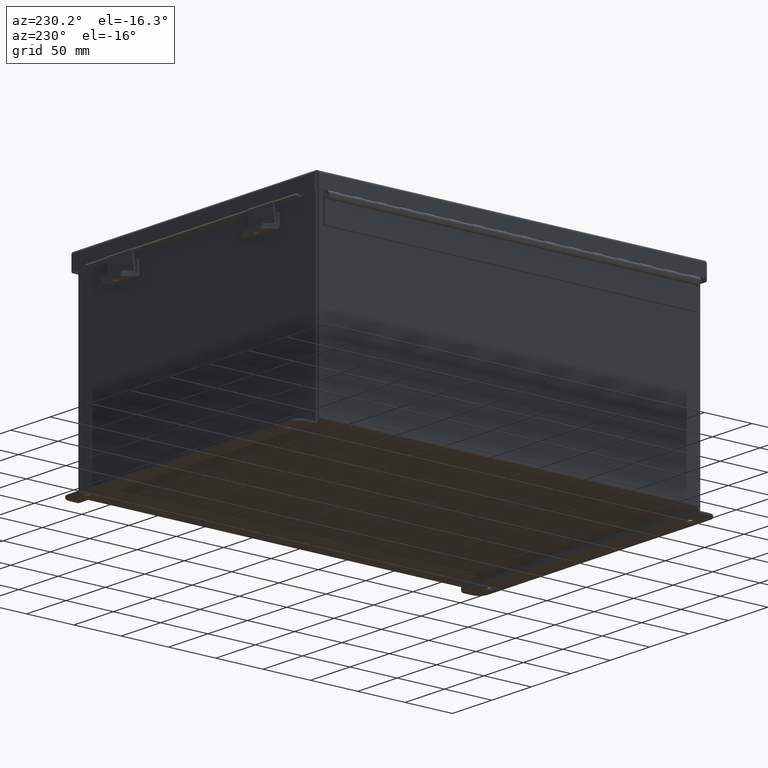
[diagram: clean part render]
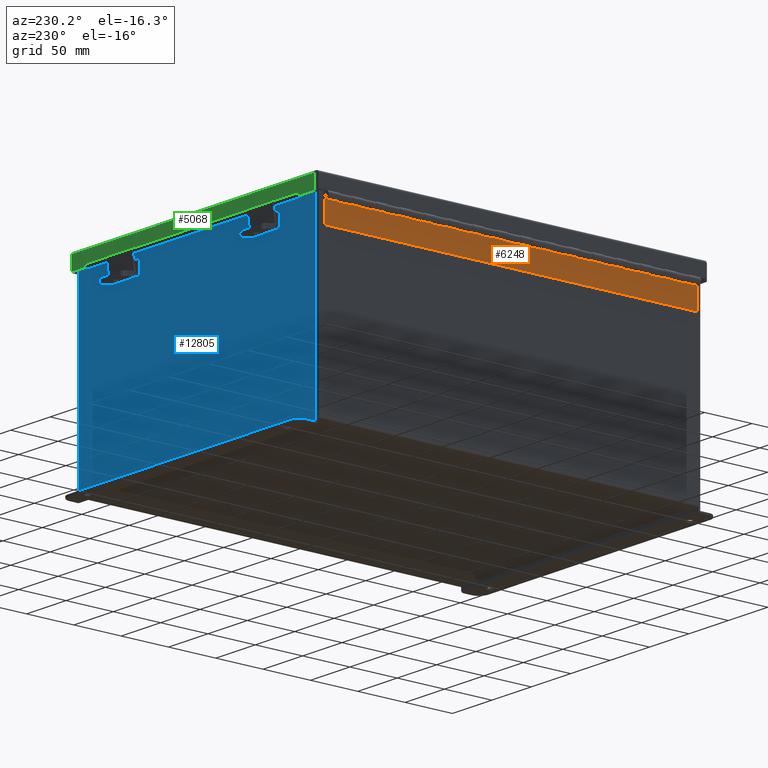
[diagram: same view with three faces highlighted in distinct colors, each labeled with its STEP entity id]
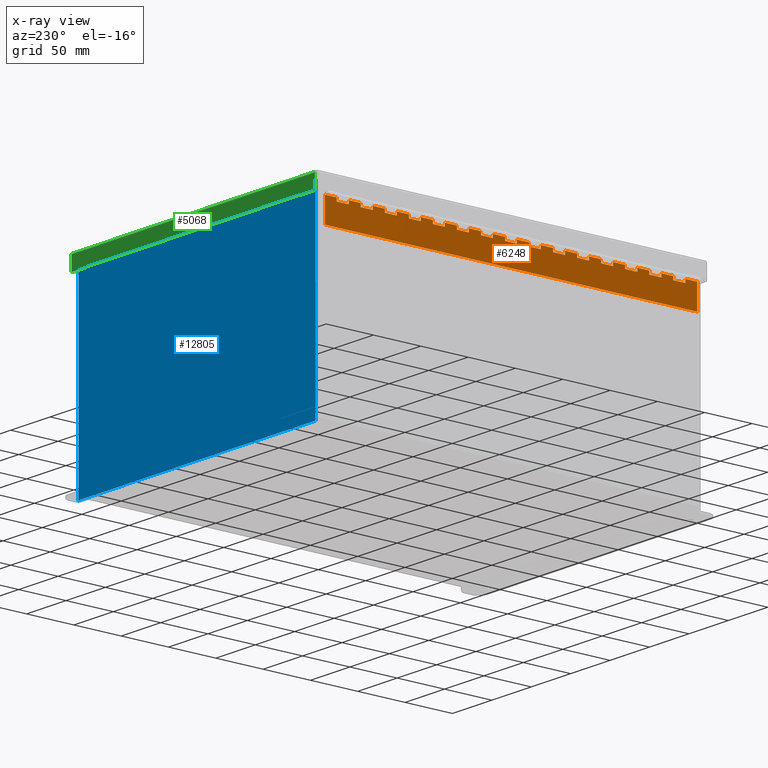
[diagram: x-ray of the same camera — body ghosted, the three highlighted faces saturated]
A machine part, auxiliary view with three faces highlighted in distinct colors.
The next image is the same camera in x-ray (body ghosted, the three faces saturated) — at least one of them is partly hidden behind the body in this view.
Their STEP definitions:

[orange] entity #6248 — the highlighted planar face has unit normal (1, -0, 0).
#3 = VECTOR ( 'NONE', #9007, 39.37007874015748100 ) ;
#46 = CARTESIAN_POINT ( 'NONE',  ( 0.1365000000000000100, 13.00000000000000000, -1.707404996040164500E-017 ) ) ;
#153 = EDGE_CURVE ( 'NONE', #8530, #1476, #5416, .T. ) ;
#333 = DIRECTION ( 'NONE',  ( -1.000000000000000000, 0.0000000000000000000, 0.0000000000000000000 ) ) ;
#391 = CARTESIAN_POINT ( 'NONE',  ( 0.1365000000000000100, 0.0000000000000000000, -1.707404996040164500E-017 ) ) ;
#461 = CARTESIAN_POINT ( 'NONE',  ( 0.2730000000000000200, 0.0000000000000000000, 0.0000000000000000000 ) ) ;
#488 = LINE ( 'NONE', #7383, #5603 ) ;
#493 = VERTEX_POINT ( 'NONE', #2333 ) ;
#516 = DIRECTION ( 'NONE',  ( 0.0000000000000000000, 1.000000000000000000, 0.0000000000000000000 ) ) ;
#526 = EDGE_CURVE ( 'NONE', #12736, #3023, #19747, .T. ) ;
#618 = CARTESIAN_POINT ( 'NONE',  ( 0.1365000000000000100, 0.0000000000000000000, -1.707404996040164500E-017 ) ) ;
#699 = EDGE_CURVE ( 'NONE', #14572, #18294, #5392, .T. ) ;
#700 = CARTESIAN_POINT ( 'NONE',  ( 0.1365000000000000100, 6.500000000000003600, -1.707404996040164500E-017 ) ) ;
#713 = VERTEX_POINT ( 'NONE', #3446 ) ;
#722 = ORIENTED_EDGE ( 'NONE', *, *, #526, .T. ) ;
#771 = ORIENTED_EDGE ( 'NONE', *, *, #16030, .F. ) ;
#893 = CARTESIAN_POINT ( 'NONE',  ( 0.1365000000000000100, 5.000000000000000000, -1.707404996040164500E-017 ) ) ;
#995 = CARTESIAN_POINT ( 'NONE',  ( 0.2730000000000000200, 15.00000000000000000, 0.0000000000000000000 ) ) ;
#1054 = DIRECTION ( 'NONE',  ( -1.000000000000000000, -8.005415366049128100E-015, 0.0000000000000000000 ) ) ;
#1101 = EDGE_CURVE ( 'NONE', #2917, #19123, #14157, .T. ) ;
#1227 = DIRECTION ( 'NONE',  ( -1.000000000000000000, -8.005415366049128100E-015, 0.0000000000000000000 ) ) ;
#1230 = CARTESIAN_POINT ( 'NONE',  ( 0.1365000000000000100, 11.00000000000000000, -1.707404996040164500E-017 ) ) ;
#1265 = VECTOR ( 'NONE', #13821, 39.37007874015748100 ) ;
#1304 = VECTOR ( 'NONE', #1227, 39.37007874015748100 ) ;
#1352 = LINE ( 'NONE', #8424, #9545 ) ;
#1434 = CARTESIAN_POINT ( 'NONE',  ( 0.2730000000000000200, 11.00000000000000000, 0.0000000000000000000 ) ) ;
#1463 = CARTESIAN_POINT ( 'NONE',  ( 0.0000000000000000000, 15.00000000000000000, 0.0000000000000000000 ) ) ;
#1476 = VERTEX_POINT ( 'NONE', #10906 ) ;
#1535 = ORIENTED_EDGE ( 'NONE', *, *, #7139, .F. ) ;
#1542 = VERTEX_POINT ( 'NONE', #46 ) ;
#1564 = VECTOR ( 'NONE', #6914, 39.37007874015748100 ) ;
#1583 = CARTESIAN_POINT ( 'NONE',  ( 0.1365000000000000100, 7.500000000000003600, -1.707404996040164500E-017 ) ) ;
#1594 = ORIENTED_EDGE ( 'NONE', *, *, #8466, .F. ) ;
#1603 = VERTEX_POINT ( 'NONE', #3360 ) ;
#1628 = VERTEX_POINT ( 'NONE', #12280 ) ;
#1717 = EDGE_CURVE ( 'NONE', #6174, #11030, #12152, .T. ) ;
#1738 = LINE ( 'NONE', #11251, #13144 ) ;
#1770 = VECTOR ( 'NONE', #5754, 39.37007874015748100 ) ;
#1844 = VECTOR ( 'NONE', #14660, 39.37007874015748100 ) ;
#1866 = DIRECTION ( 'NONE',  ( 0.0000000000000000000, 1.000000000000000000, 0.0000000000000000000 ) ) ;
#1998 = LINE ( 'NONE', #13473, #9709 ) ;
#2001 = DIRECTION ( 'NONE',  ( -1.000000000000000000, -8.005415366049128100E-015, 0.0000000000000000000 ) ) ;
#2015 = CARTESIAN_POINT ( 'NONE',  ( 0.1365000000000000100, 14.00000000000000200, -1.707404996040164500E-017 ) ) ;
#2018 = VECTOR ( 'NONE', #333, 39.37007874015748100 ) ;
#2038 = VECTOR ( 'NONE', #13010, 39.37007874015748100 ) ;
#2075 = CARTESIAN_POINT ( 'NONE',  ( 0.1365000000000000100, 3.500000000000003600, -1.707404996040164500E-017 ) ) ;
#2170 = CARTESIAN_POINT ( 'NONE',  ( 0.2730000000000000200, -14.00000000000000000, 0.0000000000000000000 ) ) ;
#2269 = CARTESIAN_POINT ( 'NONE',  ( -1.160785228077123600E-013, 4.500000000000000900, 0.0000000000000000000 ) ) ;
#2282 = VERTEX_POINT ( 'NONE', #12005 ) ;
#2290 = VERTEX_POINT ( 'NONE', #16976 ) ;
#2318 = ORIENTED_EDGE ( 'NONE', *, *, #3606, .T. ) ;
#2333 = CARTESIAN_POINT ( 'NONE',  ( 0.1365000000000000100, 1.500000000000003100, -1.707404996040164500E-017 ) ) ;
#2361 = LINE ( 'NONE', #14863, #10089 ) ;
#2403 = ORIENTED_EDGE ( 'NONE', *, *, #9095, .F. ) ;
#2446 = DIRECTION ( 'NONE',  ( 0.0000000000000000000, 1.000000000000000000, 0.0000000000000000000 ) ) ;
#2483 = VECTOR ( 'NONE', #3476, 39.37007874015748100 ) ;
#2487 = DIRECTION ( 'NONE',  ( 0.0000000000000000000, 1.000000000000000000, 0.0000000000000000000 ) ) ;
#2574 = VECTOR ( 'NONE', #5277, 39.37007874015748100 ) ;
#2594 = VERTEX_POINT ( 'NONE', #700 ) ;
#2639 = VECTOR ( 'NONE', #9707, 39.37007874015748100 ) ;
#2726 = VERTEX_POINT ( 'NONE', #11548 ) ;
#2779 = EDGE_CURVE ( 'NONE', #1603, #12071, #7074, .T. ) ;
#2804 = VECTOR ( 'NONE', #17654, 39.37007874015748100 ) ;
#2853 = ORIENTED_EDGE ( 'NONE', *, *, #9644, .F. ) ;
#2917 = VERTEX_POINT ( 'NONE', #16518 ) ;
#2926 = CARTESIAN_POINT ( 'NONE',  ( 0.2730000000000000200, 4.000000000000000900, 0.0000000000000000000 ) ) ;
#2977 = ORIENTED_EDGE ( 'NONE', *, *, #11495, .F. ) ;
#3023 = VERTEX_POINT ( 'NONE', #3148 ) ;
#3078 = EDGE_CURVE ( 'NONE', #6644, #18162, #9459, .T. ) ;
#3095 = VERTEX_POINT ( 'NONE', #10650 ) ;
#3116 = VECTOR ( 'NONE', #14260, 39.37007874015748100 ) ;
#3148 = CARTESIAN_POINT ( 'NONE',  ( 0.1365000000000000100, 10.50000000000000200, -1.707404996040164500E-017 ) ) ;
#3166 = LINE ( 'NONE', #5342, #10910 ) ;
#3170 = DIRECTION ( 'NONE',  ( -1.000000000000000000, 0.0000000000000000000, 0.0000000000000000000 ) ) ;
#3210 = LINE ( 'NONE', #10047, #7316 ) ;
#3270 = EDGE_CURVE ( 'NONE', #713, #6211, #6560, .T. ) ;
#3277 = VERTEX_POINT ( 'NONE', #8619 ) ;
#3333 = VERTEX_POINT ( 'NONE', #1230 ) ;
#3341 = EDGE_CURVE ( 'NONE', #18162, #7173, #9705, .T. ) ;
#3360 = CARTESIAN_POINT ( 'NONE',  ( 1.136500000000000100, 0.0000000000000000000, 0.0000000000000000000 ) ) ;
#3446 = CARTESIAN_POINT ( 'NONE',  ( 0.2730000000000000200, 14.00000000000000200, 0.0000000000000000000 ) ) ;
#3474 = VECTOR ( 'NONE', #12759, 39.37007874015748100 ) ;
#3476 = DIRECTION ( 'NONE',  ( -1.000000000000000000, 0.0000000000000000000, 0.0000000000000000000 ) ) ;
#3484 = DIRECTION ( 'NONE',  ( 0.0000000000000000000, 1.000000000000000000, 0.0000000000000000000 ) ) ;
#3538 = EDGE_CURVE ( 'NONE', #14258, #14279, #7282, .T. ) ;
#3560 = CARTESIAN_POINT ( 'NONE',  ( -1.160785228077123600E-013, 13.50000000000000200, 0.0000000000000000000 ) ) ;
#3582 = CARTESIAN_POINT ( 'NONE',  ( 0.0000000000000000000, 13.00000000000000000, 0.0000000000000000000 ) ) ;
#3606 = EDGE_CURVE ( 'NONE', #11453, #2282, #1738, .T. ) ;
#3686 = DIRECTION ( 'NONE',  ( -1.000000000000000000, -8.005415366049128100E-015, 0.0000000000000000000 ) ) ;
#3710 = LINE ( 'NONE', #19711, #18772 ) ;
#3785 = ORIENTED_EDGE ( 'NONE', *, *, #14071, .F. ) ;
#3868 = CARTESIAN_POINT ( 'NONE',  ( -1.160785228077123600E-013, 12.50000000000000000, 0.0000000000000000000 ) ) ;
#3886 = LINE ( 'NONE', #11362, #19465 ) ;
#3907 = LINE ( 'NONE', #11376, #12153 ) ;
#3959 = EDGE_CURVE ( 'NONE', #12008, #8530, #3166, .T. ) ;
#3974 = ORIENTED_EDGE ( 'NONE', *, *, #18471, .T. ) ;
#3978 = VECTOR ( 'NONE', #10866, 39.37007874015748100 ) ;
#4022 = ORIENTED_EDGE ( 'NONE', *, *, #18611, .T. ) ;
#4031 = EDGE_CURVE ( 'NONE', #3277, #1628, #17227, .T. ) ;
#4032 = ORIENTED_EDGE ( 'NONE', *, *, #7950, .F. ) ;
#4129 = DIRECTION ( 'NONE',  ( 0.0000000000000000000, 1.000000000000000000, 0.0000000000000000000 ) ) ;
#4161 = VECTOR ( 'NONE', #8328, 39.37007874015748100 ) ;
#4163 = CARTESIAN_POINT ( 'NONE',  ( 0.1365000000000000100, 4.000000000000000900, -1.707404996040164500E-017 ) ) ;
#4247 = ORIENTED_EDGE ( 'NONE', *, *, #6741, .F. ) ;
#4304 = CARTESIAN_POINT ( 'NONE',  ( 0.2730000000000000200, 7.000000000000000900, 0.0000000000000000000 ) ) ;
#4315 = CARTESIAN_POINT ( 'NONE',  ( 0.2730000000000000200, 13.00000000000000000, 0.0000000000000000000 ) ) ;
#4327 = CARTESIAN_POINT ( 'NONE',  ( 0.1365000000000000100, 0.0000000000000000000, -1.707404996040164500E-017 ) ) ;
#4595 = CARTESIAN_POINT ( 'NONE',  ( 0.1365000000000000100, 13.50000000000000400, -1.707404996040164500E-017 ) ) ;
#4614 = CARTESIAN_POINT ( 'NONE',  ( 0.1365000000000000100, 12.00000000000000200, -1.707404996040164500E-017 ) ) ;
#4632 = CARTESIAN_POINT ( 'NONE',  ( 0.0000000000000000000, 12.00000000000000200, 0.0000000000000000000 ) ) ;
#4652 = ORIENTED_EDGE ( 'NONE', *, *, #12603, .T. ) ;
#4725 = DIRECTION ( 'NONE',  ( 0.0000000000000000000, 1.000000000000000000, 0.0000000000000000000 ) ) ;
#4741 = CARTESIAN_POINT ( 'NONE',  ( 0.2730000000000000200, 13.50000000000000400, 0.0000000000000000000 ) ) ;
#4765 = ORIENTED_EDGE ( 'NONE', *, *, #3341, .F. ) ;
#4788 = CARTESIAN_POINT ( 'NONE',  ( 0.2730000000000000200, -1.000000000000000000, 0.0000000000000000000 ) ) ;
#4827 = ORIENTED_EDGE ( 'NONE', *, *, #18081, .T. ) ;
#4926 = EDGE_CURVE ( 'NONE', #18856, #713, #11358, .T. ) ;
#4949 = CARTESIAN_POINT ( 'NONE',  ( 0.0000000000000000000, 6.000000000000000900, 0.0000000000000000000 ) ) ;
#5022 = CARTESIAN_POINT ( 'NONE',  ( 0.2730000000000000200, -7.000000000000000000, 0.0000000000000000000 ) ) ;
#5131 = VECTOR ( 'NONE', #14427, 39.37007874015748100 ) ;
#5266 = VECTOR ( 'NONE', #19802, 39.37007874015748100 ) ;
#5277 = DIRECTION ( 'NONE',  ( 0.0000000000000000000, 1.000000000000000000, 0.0000000000000000000 ) ) ;
#5316 = CARTESIAN_POINT ( 'NONE',  ( 0.0000000000000000000, 0.0000000000000000000, 0.0000000000000000000 ) ) ;
#5342 = CARTESIAN_POINT ( 'NONE',  ( 0.2730000000000000200, -13.00000000000000000, 0.0000000000000000000 ) ) ;
#5392 = LINE ( 'NONE', #12124, #1304 ) ;
#5416 = LINE ( 'NONE', #14560, #12717 ) ;
#5417 = ORIENTED_EDGE ( 'NONE', *, *, #3538, .F. ) ;
#5437 = VERTEX_POINT ( 'NONE', #9591 ) ;
#5445 = EDGE_CURVE ( 'NONE', #3333, #1628, #7704, .T. ) ;
#5466 = EDGE_LOOP ( 'NONE', ( #5975, #14944, #12234, #8355, #10683, #17683, #5417, #17145, #17313, #18389, #13273, #12168, #10935, #2403, #3785, #4247, #4022, #1535, #8766, #19732, #17760, #7649, #2977, #19866, #722, #771, #9817, #11134, #16356, #15605, #11776, #6002, #18760, #4765, #6687, #11378, #12994, #14837, #17361, #19886, #4652, #5518, #11643, #10918, #2318, #19448, #8149, #18537, #15684, #18197, #9492, #6964, #3974, #4032, #1594, #11463, #12999, #12557, #12278, #16909, #4827, #12478, #8607, #2853 ) ) ;
#5469 = CARTESIAN_POINT ( 'NONE',  ( 0.2730000000000000200, 6.500000000000003600, 0.0000000000000000000 ) ) ;
#5482 = EDGE_CURVE ( 'NONE', #15211, #8581, #19147, .T. ) ;
#5518 = ORIENTED_EDGE ( 'NONE', *, *, #11937, .F. ) ;
#5588 = EDGE_CURVE ( 'NONE', #14279, #6457, #14268, .T. ) ;
#5597 = VECTOR ( 'NONE', #1866, 39.37007874015748100 ) ;
#5603 = VECTOR ( 'NONE', #19830, 39.37007874015748100 ) ;
#5702 = EDGE_CURVE ( 'NONE', #16415, #5768, #7666, .T. ) ;
#5754 = DIRECTION ( 'NONE',  ( 0.0000000000000000000, 1.000000000000000000, 0.0000000000000000000 ) ) ;
#5768 = VERTEX_POINT ( 'NONE', #2926 ) ;
#5957 = CARTESIAN_POINT ( 'NONE',  ( 0.1365000000000000100, 12.50000000000000400, -1.707404996040164500E-017 ) ) ;
#5960 = CARTESIAN_POINT ( 'NONE',  ( 0.1365000000000000100, 10.00000000000000000, -1.707404996040164500E-017 ) ) ;
#5975 = ORIENTED_EDGE ( 'NONE', *, *, #5482, .T. ) ;
#5981 = CARTESIAN_POINT ( 'NONE',  ( 0.1365000000000000100, 0.0000000000000000000, -1.707404996040164500E-017 ) ) ;
#6002 = ORIENTED_EDGE ( 'NONE', *, *, #17617, .F. ) ;
#6053 = EDGE_CURVE ( 'NONE', #7628, #13003, #2361, .T. ) ;
#6119 = DIRECTION ( 'NONE',  ( -1.000000000000000000, -8.005415366049128100E-015, 0.0000000000000000000 ) ) ;
#6121 = LINE ( 'NONE', #4949, #2018 ) ;
#6174 = VERTEX_POINT ( 'NONE', #18566 ) ;
#6211 = VERTEX_POINT ( 'NONE', #2015 ) ;
#6248 = ADVANCED_FACE ( 'NONE', ( #19095 ), #15713, .F. ) ;
#6256 = CARTESIAN_POINT ( 'NONE',  ( 0.2730000000000000200, 2.500000000000004400, 0.0000000000000000000 ) ) ;
#6316 = VECTOR ( 'NONE', #13557, 39.37007874015748100 ) ;
#6343 = DIRECTION ( 'NONE',  ( -1.000000000000000000, -8.005415366049128100E-015, 0.0000000000000000000 ) ) ;
#6357 = EDGE_CURVE ( 'NONE', #6211, #17036, #17126, .T. ) ;
#6448 = CARTESIAN_POINT ( 'NONE',  ( 0.1365000000000000100, 0.0000000000000000000, -1.707404996040164500E-017 ) ) ;
#6457 = VERTEX_POINT ( 'NONE', #17433 ) ;
#6524 = EDGE_CURVE ( 'NONE', #19123, #13762, #14234, .T. ) ;
#6531 = CARTESIAN_POINT ( 'NONE',  ( 0.2730000000000000200, 10.50000000000000200, 0.0000000000000000000 ) ) ;
#6538 = CARTESIAN_POINT ( 'NONE',  ( -1.160785228077123600E-013, 0.5000000000000017800, 0.0000000000000000000 ) ) ;
#6560 = LINE ( 'NONE', #7669, #2483 ) ;
#6568 = CARTESIAN_POINT ( 'NONE',  ( -1.160785228077123600E-013, 3.500000000000001300, 0.0000000000000000000 ) ) ;
#6581 = VECTOR ( 'NONE', #8561, 39.37007874015748100 ) ;
#6644 = VERTEX_POINT ( 'NONE', #15951 ) ;
#6687 = ORIENTED_EDGE ( 'NONE', *, *, #3078, .F. ) ;
#6741 = EDGE_CURVE ( 'NONE', #15471, #19284, #19076, .T. ) ;
#6775 = CARTESIAN_POINT ( 'NONE',  ( 0.1365000000000000100, 0.0000000000000000000, -1.707404996040164500E-017 ) ) ;
#6850 = VECTOR ( 'NONE', #7985, 39.37007874015748100 ) ;
#6880 = LINE ( 'NONE', #14026, #18801 ) ;
#6881 = CARTESIAN_POINT ( 'NONE',  ( -1.160785228077123600E-013, 10.50000000000000200, 0.0000000000000000000 ) ) ;
#6914 = DIRECTION ( 'NONE',  ( -1.000000000000000000, -8.005415366049128100E-015, 0.0000000000000000000 ) ) ;
#6934 = CARTESIAN_POINT ( 'NONE',  ( 0.2730000000000000200, -4.000000000000000000, 0.0000000000000000000 ) ) ;
#6964 = ORIENTED_EDGE ( 'NONE', *, *, #5702, .F. ) ;
#6967 = EDGE_CURVE ( 'NONE', #13809, #11030, #11993, .T. ) ;
#7024 = CARTESIAN_POINT ( 'NONE',  ( -1.160785228077123600E-013, 9.500000000000000000, 0.0000000000000000000 ) ) ;
#7074 = LINE ( 'NONE', #14575, #6581 ) ;
#7139 = EDGE_CURVE ( 'NONE', #14519, #7487, #20019, .T. ) ;
#7173 = VERTEX_POINT ( 'NONE', #9555 ) ;
#7211 = CARTESIAN_POINT ( 'NONE',  ( 0.1365000000000000100, 15.00000000000000000, -1.707404996040164500E-017 ) ) ;
#7212 = LINE ( 'NONE', #12809, #2639 ) ;
#7233 = LINE ( 'NONE', #5981, #14561 ) ;
#7248 = VECTOR ( 'NONE', #16247, 39.37007874015748100 ) ;
#7267 = CARTESIAN_POINT ( 'NONE',  ( 0.2730000000000000200, 12.00000000000000200, 0.0000000000000000000 ) ) ;
#7282 = LINE ( 'NONE', #1463, #6316 ) ;
#7316 = VECTOR ( 'NONE', #17793, 39.37007874015748100 ) ;
#7383 = CARTESIAN_POINT ( 'NONE',  ( 0.1365000000000000100, 0.0000000000000000000, -1.707404996040164500E-017 ) ) ;
#7391 = CARTESIAN_POINT ( 'NONE',  ( 0.1365000000000000100, 14.50000000000000400, -1.707404996040164500E-017 ) ) ;
#7466 = EDGE_CURVE ( 'NONE', #17277, #9261, #18794, .T. ) ;
#7487 = VERTEX_POINT ( 'NONE', #5957 ) ;
#7516 = VECTOR ( 'NONE', #13023, 39.37007874015748100 ) ;
#7593 = LINE ( 'NONE', #2269, #10748 ) ;
#7628 = VERTEX_POINT ( 'NONE', #19006 ) ;
#7649 = ORIENTED_EDGE ( 'NONE', *, *, #5445, .F. ) ;
#7666 = LINE ( 'NONE', #13959, #11811 ) ;
#7669 = CARTESIAN_POINT ( 'NONE',  ( 0.0000000000000000000, 14.00000000000000200, 0.0000000000000000000 ) ) ;
#7704 = LINE ( 'NONE', #12949, #3116 ) ;
#7760 = EDGE_CURVE ( 'NONE', #5768, #9883, #14428, .T. ) ;
#7813 = VECTOR ( 'NONE', #9651, 39.37007874015748100 ) ;
#7864 = CARTESIAN_POINT ( 'NONE',  ( 0.0000000000000000000, 9.000000000000001800, 0.0000000000000000000 ) ) ;
#7877 = EDGE_CURVE ( 'NONE', #15425, #14536, #16090, .T. ) ;
#7903 = DIRECTION ( 'NONE',  ( -1.000000000000000000, -8.005415366049128100E-015, 0.0000000000000000000 ) ) ;
#7909 = CARTESIAN_POINT ( 'NONE',  ( 0.2730000000000000200, 5.000000000000000000, 0.0000000000000000000 ) ) ;
#7950 = EDGE_CURVE ( 'NONE', #16865, #16725, #19272, .T. ) ;
#7982 = EDGE_CURVE ( 'NONE', #6174, #6644, #18774, .T. ) ;
#7985 = DIRECTION ( 'NONE',  ( 0.0000000000000000000, 1.000000000000000000, 0.0000000000000000000 ) ) ;
#8149 = ORIENTED_EDGE ( 'NONE', *, *, #7466, .F. ) ;
#8249 = LINE ( 'NONE', #4327, #3 ) ;
#8328 = DIRECTION ( 'NONE',  ( 0.0000000000000000000, 1.000000000000000000, 0.0000000000000000000 ) ) ;
#8355 = ORIENTED_EDGE ( 'NONE', *, *, #2779, .T. ) ;
#8358 = DIRECTION ( 'NONE',  ( 0.0000000000000000000, 1.000000000000000000, 0.0000000000000000000 ) ) ;
#8424 = CARTESIAN_POINT ( 'NONE',  ( 0.1365000000000000100, 0.0000000000000000000, -1.707404996040164500E-017 ) ) ;
#8466 = EDGE_CURVE ( 'NONE', #12567, #16865, #19534, .T. ) ;
#8530 = VERTEX_POINT ( 'NONE', #12470 ) ;
#8561 = DIRECTION ( 'NONE',  ( -8.812412882787946000E-018, 1.000000000000000000, 0.0000000000000000000 ) ) ;
#8579 = LINE ( 'NONE', #461, #15869 ) ;
#8581 = VERTEX_POINT ( 'NONE', #17291 ) ;
#8607 = ORIENTED_EDGE ( 'NONE', *, *, #6053, .F. ) ;
#8619 = CARTESIAN_POINT ( 'NONE',  ( 0.2730000000000000200, 11.50000000000000400, 0.0000000000000000000 ) ) ;
#8766 = ORIENTED_EDGE ( 'NONE', *, *, #11686, .F. ) ;
#8864 = VECTOR ( 'NONE', #8358, 39.37007874015748100 ) ;
#8896 = LINE ( 'NONE', #391, #16681 ) ;
#8900 = VERTEX_POINT ( 'NONE', #4304 ) ;
#9007 = DIRECTION ( 'NONE',  ( 0.0000000000000000000, 1.000000000000000000, 0.0000000000000000000 ) ) ;
#9050 = CARTESIAN_POINT ( 'NONE',  ( 0.1365000000000000100, 6.000000000000000900, -1.707404996040164500E-017 ) ) ;
#9095 = EDGE_CURVE ( 'NONE', #1542, #11008, #3907, .T. ) ;
#9134 = CARTESIAN_POINT ( 'NONE',  ( 0.2730000000000000200, -10.00000000000000000, 0.0000000000000000000 ) ) ;
#9247 = CARTESIAN_POINT ( 'NONE',  ( 0.0000000000000000000, 5.000000000000000000, 0.0000000000000000000 ) ) ;
#9261 = VERTEX_POINT ( 'NONE', #893 ) ;
#9334 = CARTESIAN_POINT ( 'NONE',  ( 0.2730000000000000200, 9.000000000000001800, 0.0000000000000000000 ) ) ;
#9380 = LINE ( 'NONE', #10461, #5266 ) ;
#9459 = LINE ( 'NONE', #14417, #1265 ) ;
#9489 = VERTEX_POINT ( 'NONE', #1434 ) ;
#9492 = ORIENTED_EDGE ( 'NONE', *, *, #7760, .F. ) ;
#9545 = VECTOR ( 'NONE', #17742, 39.37007874015748100 ) ;
#9551 = CARTESIAN_POINT ( 'NONE',  ( 0.1365000000000000100, 0.0000000000000000000, -1.707404996040164500E-017 ) ) ;
#9555 = CARTESIAN_POINT ( 'NONE',  ( 0.1365000000000000100, 8.500000000000003600, -1.707404996040164500E-017 ) ) ;
#9591 = CARTESIAN_POINT ( 'NONE',  ( 0.2730000000000000200, 4.500000000000002700, 0.0000000000000000000 ) ) ;
#9601 = VECTOR ( 'NONE', #2487, 39.37007874015748100 ) ;
#9623 = EDGE_CURVE ( 'NONE', #12071, #6457, #3886, .T. ) ;
#9644 = EDGE_CURVE ( 'NONE', #15211, #7628, #15339, .T. ) ;
#9651 = DIRECTION ( 'NONE',  ( -1.000000000000000000, -8.005415366049128100E-015, 0.0000000000000000000 ) ) ;
#9674 = CARTESIAN_POINT ( 'NONE',  ( 0.2730000000000000200, -2.000000000000000000, 0.0000000000000000000 ) ) ;
#9705 = LINE ( 'NONE', #9963, #5597 ) ;
#9707 = DIRECTION ( 'NONE',  ( 0.0000000000000000000, 1.000000000000000000, 0.0000000000000000000 ) ) ;
#9709 = VECTOR ( 'NONE', #4129, 39.37007874015748100 ) ;
#9751 = DIRECTION ( 'NONE',  ( 0.0000000000000000000, 1.000000000000000000, 0.0000000000000000000 ) ) ;
#9781 = VERTEX_POINT ( 'NONE', #5469 ) ;
#9817 = ORIENTED_EDGE ( 'NONE', *, *, #6524, .F. ) ;
#9826 = LINE ( 'NONE', #14114, #17608 ) ;
#9883 = VERTEX_POINT ( 'NONE', #4163 ) ;
#9911 = DIRECTION ( 'NONE',  ( -1.000000000000000000, 0.0000000000000000000, -0.0000000000000000000 ) ) ;
#9963 = CARTESIAN_POINT ( 'NONE',  ( 0.1365000000000000100, 0.0000000000000000000, -1.707404996040164500E-017 ) ) ;
#10047 = CARTESIAN_POINT ( 'NONE',  ( 0.2730000000000000200, -2.999999999999999600, 0.0000000000000000000 ) ) ;
#10072 = VECTOR ( 'NONE', #15752, 39.37007874015748100 ) ;
#10089 = VECTOR ( 'NONE', #16265, 39.37007874015748100 ) ;
#10261 = LINE ( 'NONE', #3582, #2038 ) ;
#10273 = LINE ( 'NONE', #3868, #1564 ) ;
#10319 = CARTESIAN_POINT ( 'NONE',  ( 0.2730000000000000200, 3.500000000000003600, 0.0000000000000000000 ) ) ;
#10360 = CARTESIAN_POINT ( 'NONE',  ( 0.2730000000000000200, 0.5000000000000040000, 0.0000000000000000000 ) ) ;
#10380 = DIRECTION ( 'NONE',  ( -1.000000000000000000, -8.005415366049128100E-015, 0.0000000000000000000 ) ) ;
#10391 = EDGE_CURVE ( 'NONE', #12736, #9489, #20140, .T. ) ;
#10461 = CARTESIAN_POINT ( 'NONE',  ( 0.0000000000000000000, 11.00000000000000000, 0.0000000000000000000 ) ) ;
#10477 = VECTOR ( 'NONE', #3484, 39.37007874015748100 ) ;
#10590 = CARTESIAN_POINT ( 'NONE',  ( 0.1365000000000000100, 8.000000000000001800, -1.707404996040164500E-017 ) ) ;
#10650 = CARTESIAN_POINT ( 'NONE',  ( 0.2730000000000000200, 8.500000000000003600, 0.0000000000000000000 ) ) ;
#10683 = ORIENTED_EDGE ( 'NONE', *, *, #9623, .T. ) ;
#10684 = DIRECTION ( 'NONE',  ( 0.0000000000000000000, 1.000000000000000000, 0.0000000000000000000 ) ) ;
#10748 = VECTOR ( 'NONE', #13123, 39.37007874015748100 ) ;
#10815 = DIRECTION ( 'NONE',  ( -1.000000000000000000, 0.0000000000000000000, 0.0000000000000000000 ) ) ;
#10866 = DIRECTION ( 'NONE',  ( 0.0000000000000000000, 1.000000000000000000, 0.0000000000000000000 ) ) ;
#10906 = CARTESIAN_POINT ( 'NONE',  ( 0.1365000000000000100, 2.000000000000000400, -1.707404996040164500E-017 ) ) ;
#10910 = VECTOR ( 'NONE', #18396, 39.37007874015748100 ) ;
#10918 = ORIENTED_EDGE ( 'NONE', *, *, #15195, .F. ) ;
#10930 = EDGE_CURVE ( 'NONE', #1476, #18294, #7233, .T. ) ;
#10935 = ORIENTED_EDGE ( 'NONE', *, *, #14746, .T. ) ;
#10994 = VECTOR ( 'NONE', #3170, 39.37007874015748100 ) ;
#11008 = VERTEX_POINT ( 'NONE', #4595 ) ;
#11030 = VERTEX_POINT ( 'NONE', #1583 ) ;
#11134 = ORIENTED_EDGE ( 'NONE', *, *, #1101, .F. ) ;
#11169 = CARTESIAN_POINT ( 'NONE',  ( 0.2730000000000000200, -8.000000000000000000, 0.0000000000000000000 ) ) ;
#11242 = DIRECTION ( 'NONE',  ( 0.0000000000000000000, 1.000000000000000000, 0.0000000000000000000 ) ) ;
#11251 = CARTESIAN_POINT ( 'NONE',  ( -1.160785228077123600E-013, 5.500000000000000900, 0.0000000000000000000 ) ) ;
#11358 = LINE ( 'NONE', #4788, #15050 ) ;
#11359 = EDGE_CURVE ( 'NONE', #2917, #14516, #15966, .T. ) ;
#11362 = CARTESIAN_POINT ( 'NONE',  ( 0.0000000000000000000, 15.50000000000000000, 0.0000000000000000000 ) ) ;
#11376 = CARTESIAN_POINT ( 'NONE',  ( 0.1365000000000000100, 0.0000000000000000000, -1.707404996040164500E-017 ) ) ;
#11378 = ORIENTED_EDGE ( 'NONE', *, *, #7982, .F. ) ;
#11379 = VERTEX_POINT ( 'NONE', #17914 ) ;
#11408 = CARTESIAN_POINT ( 'NONE',  ( 0.1365000000000000100, 0.0000000000000000000, -1.707404996040164500E-017 ) ) ;
#11453 = VERTEX_POINT ( 'NONE', #16547 ) ;
#11463 = ORIENTED_EDGE ( 'NONE', *, *, #12920, .F. ) ;
#11495 = EDGE_CURVE ( 'NONE', #9489, #3333, #9380, .T. ) ;
#11548 = CARTESIAN_POINT ( 'NONE',  ( 0.1365000000000000100, 4.500000000000002700, -1.707404996040164500E-017 ) ) ;
#11572 = CARTESIAN_POINT ( 'NONE',  ( 0.2730000000000000200, -11.99999999999999800, 0.0000000000000000000 ) ) ;
#11573 = VECTOR ( 'NONE', #6343, 39.37007874015748100 ) ;
#11578 = VERTEX_POINT ( 'NONE', #9050 ) ;
#11643 = ORIENTED_EDGE ( 'NONE', *, *, #14681, .F. ) ;
#11686 = EDGE_CURVE ( 'NONE', #18075, #14519, #14276, .T. ) ;
#11776 = ORIENTED_EDGE ( 'NONE', *, *, #7877, .F. ) ;
#11811 = VECTOR ( 'NONE', #13830, 39.37007874015748100 ) ;
#11937 = EDGE_CURVE ( 'NONE', #11578, #2594, #19618, .T. ) ;
#11948 = VECTOR ( 'NONE', #15640, 39.37007874015748100 ) ;
#11993 = LINE ( 'NONE', #618, #2804 ) ;
#12005 = CARTESIAN_POINT ( 'NONE',  ( 0.1365000000000000100, 5.500000000000002700, -1.707404996040164500E-017 ) ) ;
#12008 = VERTEX_POINT ( 'NONE', #18744 ) ;
#12071 = VERTEX_POINT ( 'NONE', #18940 ) ;
#12091 = EDGE_CURVE ( 'NONE', #9883, #2726, #8896, .T. ) ;
#12124 = CARTESIAN_POINT ( 'NONE',  ( -1.160785228077123600E-013, 2.500000000000002200, 0.0000000000000000000 ) ) ;
#12152 = LINE ( 'NONE', #17030, #19481 ) ;
#12153 = VECTOR ( 'NONE', #516, 39.37007874015748100 ) ;
#12168 = ORIENTED_EDGE ( 'NONE', *, *, #4926, .F. ) ;
#12214 = VECTOR ( 'NONE', #2001, 39.37007874015748100 ) ;
#12234 = ORIENTED_EDGE ( 'NONE', *, *, #12889, .T. ) ;
#12278 = ORIENTED_EDGE ( 'NONE', *, *, #153, .F. ) ;
#12280 = CARTESIAN_POINT ( 'NONE',  ( 0.1365000000000000100, 11.50000000000000400, -1.707404996040164500E-017 ) ) ;
#12297 = DIRECTION ( 'NONE',  ( -1.000000000000000000, 0.0000000000000000000, 0.0000000000000000000 ) ) ;
#12384 = CARTESIAN_POINT ( 'NONE',  ( 0.2730000000000000200, 3.000000000000001800, 0.0000000000000000000 ) ) ;
#12419 = CARTESIAN_POINT ( 'NONE',  ( 0.1365000000000000100, 2.500000000000004400, -1.707404996040164500E-017 ) ) ;
#12421 = CARTESIAN_POINT ( 'NONE',  ( 0.1365000000000000100, 9.000000000000001800, -1.707404996040164500E-017 ) ) ;
#12470 = CARTESIAN_POINT ( 'NONE',  ( 0.2730000000000000200, 2.000000000000000400, 0.0000000000000000000 ) ) ;
#12478 = ORIENTED_EDGE ( 'NONE', *, *, #15253, .F. ) ;
#12507 = EDGE_CURVE ( 'NONE', #5437, #17277, #20059, .T. ) ;
#12557 = ORIENTED_EDGE ( 'NONE', *, *, #10930, .F. ) ;
#12567 = VERTEX_POINT ( 'NONE', #12384 ) ;
#12603 = EDGE_CURVE ( 'NONE', #9781, #2594, #9826, .T. ) ;
#12717 = VECTOR ( 'NONE', #13659, 39.37007874015748100 ) ;
#12736 = VERTEX_POINT ( 'NONE', #6531 ) ;
#12759 = DIRECTION ( 'NONE',  ( 0.0000000000000000000, 1.000000000000000000, 0.0000000000000000000 ) ) ;
#12809 = CARTESIAN_POINT ( 'NONE',  ( 0.1365000000000000100, 0.0000000000000000000, -1.707404996040164500E-017 ) ) ;
#12889 = EDGE_CURVE ( 'NONE', #11379, #1603, #14232, .T. ) ;
#12920 = EDGE_CURVE ( 'NONE', #14572, #12567, #17860, .T. ) ;
#12923 = LINE ( 'NONE', #6775, #4161 ) ;
#12949 = CARTESIAN_POINT ( 'NONE',  ( 0.1365000000000000100, 0.0000000000000000000, -1.707404996040164500E-017 ) ) ;
#12994 = ORIENTED_EDGE ( 'NONE', *, *, #1717, .T. ) ;
#12999 = ORIENTED_EDGE ( 'NONE', *, *, #699, .T. ) ;
#13003 = VERTEX_POINT ( 'NONE', #14933 ) ;
#13010 = DIRECTION ( 'NONE',  ( -1.000000000000000000, 0.0000000000000000000, 0.0000000000000000000 ) ) ;
#13023 = DIRECTION ( 'NONE',  ( 0.0000000000000000000, 1.000000000000000000, 0.0000000000000000000 ) ) ;
#13123 = DIRECTION ( 'NONE',  ( -1.000000000000000000, -8.005415366049128100E-015, 0.0000000000000000000 ) ) ;
#13144 = VECTOR ( 'NONE', #6119, 39.37007874015748100 ) ;
#13231 = DIRECTION ( 'NONE',  ( -1.000000000000000000, -8.005415366049128100E-015, 0.0000000000000000000 ) ) ;
#13268 = CARTESIAN_POINT ( 'NONE',  ( 0.1365000000000000100, 3.000000000000001800, -1.707404996040164500E-017 ) ) ;
#13273 = ORIENTED_EDGE ( 'NONE', *, *, #3270, .F. ) ;
#13434 = LINE ( 'NONE', #3560, #5131 ) ;
#13473 = CARTESIAN_POINT ( 'NONE',  ( 0.2730000000000000200, -9.000000000000000000, 0.0000000000000000000 ) ) ;
#13509 = VECTOR ( 'NONE', #2446, 39.37007874015748100 ) ;
#13557 = DIRECTION ( 'NONE',  ( -1.000000000000000000, 0.0000000000000000000, 0.0000000000000000000 ) ) ;
#13659 = DIRECTION ( 'NONE',  ( -1.000000000000000000, 0.0000000000000000000, 0.0000000000000000000 ) ) ;
#13754 = VECTOR ( 'NONE', #17828, 39.37007874015748100 ) ;
#13762 = VERTEX_POINT ( 'NONE', #5960 ) ;
#13809 = VERTEX_POINT ( 'NONE', #18446 ) ;
#13821 = DIRECTION ( 'NONE',  ( -1.000000000000000000, 0.0000000000000000000, 0.0000000000000000000 ) ) ;
#13830 = DIRECTION ( 'NONE',  ( 0.0000000000000000000, 1.000000000000000000, 0.0000000000000000000 ) ) ;
#13958 = CARTESIAN_POINT ( 'NONE',  ( 0.1365000000000000100, 9.500000000000003600, -1.707404996040164500E-017 ) ) ;
#13959 = CARTESIAN_POINT ( 'NONE',  ( 0.2730000000000000200, -11.00000000000000000, 0.0000000000000000000 ) ) ;
#13995 = LINE ( 'NONE', #16352, #13509 ) ;
#14026 = CARTESIAN_POINT ( 'NONE',  ( -1.160785228077123600E-013, 8.500000000000001800, 0.0000000000000000000 ) ) ;
#14037 = CARTESIAN_POINT ( 'NONE',  ( 0.1365000000000000100, 0.0000000000000000000, -1.707404996040164500E-017 ) ) ;
#14071 = EDGE_CURVE ( 'NONE', #19284, #1542, #10261, .T. ) ;
#14114 = CARTESIAN_POINT ( 'NONE',  ( -1.160785228077123600E-013, 6.500000000000000900, 0.0000000000000000000 ) ) ;
#14157 = LINE ( 'NONE', #19498, #1770 ) ;
#14232 = LINE ( 'NONE', #5316, #1844 ) ;
#14234 = LINE ( 'NONE', #14335, #10072 ) ;
#14258 = VERTEX_POINT ( 'NONE', #995 ) ;
#14260 = DIRECTION ( 'NONE',  ( 0.0000000000000000000, 1.000000000000000000, 0.0000000000000000000 ) ) ;
#14268 = LINE ( 'NONE', #6448, #9601 ) ;
#14276 = LINE ( 'NONE', #4632, #14791 ) ;
#14279 = VERTEX_POINT ( 'NONE', #7211 ) ;
#14328 = EDGE_CURVE ( 'NONE', #2290, #17036, #3710, .T. ) ;
#14335 = CARTESIAN_POINT ( 'NONE',  ( 0.0000000000000000000, 10.00000000000000000, 0.0000000000000000000 ) ) ;
#14417 = CARTESIAN_POINT ( 'NONE',  ( 0.0000000000000000000, 8.000000000000001800, 0.0000000000000000000 ) ) ;
#14427 = DIRECTION ( 'NONE',  ( -1.000000000000000000, -8.005415366049128100E-015, 0.0000000000000000000 ) ) ;
#14428 = LINE ( 'NONE', #15458, #17544 ) ;
#14459 = VECTOR ( 'NONE', #10380, 39.37007874015748100 ) ;
#14508 = LINE ( 'NONE', #16708, #18613 ) ;
#14516 = VERTEX_POINT ( 'NONE', #13958 ) ;
#14519 = VERTEX_POINT ( 'NONE', #4614 ) ;
#14536 = VERTEX_POINT ( 'NONE', #12421 ) ;
#14543 = DIRECTION ( 'NONE',  ( -1.000000000000000000, -0.0000000000000000000, -0.0000000000000000000 ) ) ;
#14560 = CARTESIAN_POINT ( 'NONE',  ( 0.0000000000000000000, 2.000000000000000400, 0.0000000000000000000 ) ) ;
#14561 = VECTOR ( 'NONE', #15309, 39.37007874015748100 ) ;
#14572 = VERTEX_POINT ( 'NONE', #6256 ) ;
#14575 = CARTESIAN_POINT ( 'NONE',  ( 1.136500000000000100, 0.0000000000000000000, 0.0000000000000000000 ) ) ;
#14660 = DIRECTION ( 'NONE',  ( 1.000000000000000000, 0.0000000000000000000, 0.0000000000000000000 ) ) ;
#14681 = EDGE_CURVE ( 'NONE', #17064, #11578, #6121, .T. ) ;
#14746 = EDGE_CURVE ( 'NONE', #18856, #11008, #13434, .T. ) ;
#14791 = VECTOR ( 'NONE', #10815, 39.37007874015748100 ) ;
#14809 = EDGE_CURVE ( 'NONE', #9261, #2282, #12923, .T. ) ;
#14837 = ORIENTED_EDGE ( 'NONE', *, *, #6967, .F. ) ;
#14854 = EDGE_CURVE ( 'NONE', #3277, #18075, #3210, .T. ) ;
#14863 = CARTESIAN_POINT ( 'NONE',  ( 0.0000000000000000000, 1.000000000000001300, 0.0000000000000000000 ) ) ;
#14929 = VECTOR ( 'NONE', #18606, 39.37007874015748100 ) ;
#14933 = CARTESIAN_POINT ( 'NONE',  ( 0.1365000000000000100, 1.000000000000001300, -1.707404996040164500E-017 ) ) ;
#14944 = ORIENTED_EDGE ( 'NONE', *, *, #15279, .F. ) ;
#15050 = VECTOR ( 'NONE', #4725, 39.37007874015748100 ) ;
#15055 = CARTESIAN_POINT ( 'NONE',  ( -1.160785228077123600E-013, 1.500000000000000900, 0.0000000000000000000 ) ) ;
#15195 = EDGE_CURVE ( 'NONE', #11453, #17064, #1998, .T. ) ;
#15211 = VERTEX_POINT ( 'NONE', #10360 ) ;
#15253 = EDGE_CURVE ( 'NONE', #13003, #493, #488, .T. ) ;
#15279 = EDGE_CURVE ( 'NONE', #11379, #8581, #8249, .T. ) ;
#15309 = DIRECTION ( 'NONE',  ( 0.0000000000000000000, 1.000000000000000000, 0.0000000000000000000 ) ) ;
#15339 = LINE ( 'NONE', #2170, #7516 ) ;
#15425 = VERTEX_POINT ( 'NONE', #9334 ) ;
#15458 = CARTESIAN_POINT ( 'NONE',  ( 0.0000000000000000000, 4.000000000000000900, 0.0000000000000000000 ) ) ;
#15471 = VERTEX_POINT ( 'NONE', #15677 ) ;
#15605 = ORIENTED_EDGE ( 'NONE', *, *, #17908, .F. ) ;
#15640 = DIRECTION ( 'NONE',  ( -1.000000000000000000, 0.0000000000000000000, 0.0000000000000000000 ) ) ;
#15669 = DIRECTION ( 'NONE',  ( -1.000000000000000000, -8.005415366049128100E-015, 0.0000000000000000000 ) ) ;
#15677 = CARTESIAN_POINT ( 'NONE',  ( 0.2730000000000000200, 12.50000000000000400, 0.0000000000000000000 ) ) ;
#15684 = ORIENTED_EDGE ( 'NONE', *, *, #18555, .T. ) ;
#15713 = PLANE ( 'NONE',  #16819 ) ;
#15752 = DIRECTION ( 'NONE',  ( -1.000000000000000000, 0.0000000000000000000, 0.0000000000000000000 ) ) ;
#15869 = VECTOR ( 'NONE', #9751, 39.37007874015748100 ) ;
#15892 = LINE ( 'NONE', #15055, #14459 ) ;
#15951 = CARTESIAN_POINT ( 'NONE',  ( 0.2730000000000000200, 8.000000000000001800, 0.0000000000000000000 ) ) ;
#15966 = LINE ( 'NONE', #7024, #16475 ) ;
#16030 = EDGE_CURVE ( 'NONE', #13762, #3023, #7212, .T. ) ;
#16090 = LINE ( 'NONE', #7864, #11948 ) ;
#16247 = DIRECTION ( 'NONE',  ( 0.0000000000000000000, 1.000000000000000000, 0.0000000000000000000 ) ) ;
#16265 = DIRECTION ( 'NONE',  ( -1.000000000000000000, 0.0000000000000000000, 0.0000000000000000000 ) ) ;
#16352 = CARTESIAN_POINT ( 'NONE',  ( 0.2730000000000000200, -5.999999999999999100, 0.0000000000000000000 ) ) ;
#16356 = ORIENTED_EDGE ( 'NONE', *, *, #11359, .T. ) ;
#16415 = VERTEX_POINT ( 'NONE', #10319 ) ;
#16424 = VECTOR ( 'NONE', #10684, 39.37007874015748100 ) ;
#16475 = VECTOR ( 'NONE', #13231, 39.37007874015748100 ) ;
#16518 = CARTESIAN_POINT ( 'NONE',  ( 0.2730000000000000200, 9.500000000000003600, 0.0000000000000000000 ) ) ;
#16547 = CARTESIAN_POINT ( 'NONE',  ( 0.2730000000000000200, 5.500000000000002700, 0.0000000000000000000 ) ) ;
#16681 = VECTOR ( 'NONE', #11242, 39.37007874015748100 ) ;
#16708 = CARTESIAN_POINT ( 'NONE',  ( 0.0000000000000000000, 7.000000000000000900, 0.0000000000000000000 ) ) ;
#16725 = VERTEX_POINT ( 'NONE', #2075 ) ;
#16772 = CARTESIAN_POINT ( 'NONE',  ( 0.2730000000000000200, 6.000000000000000900, 0.0000000000000000000 ) ) ;
#16819 = AXIS2_PLACEMENT_3D ( 'NONE', #17971, #20122, #9911 ) ;
#16851 = LINE ( 'NONE', #6568, #12214 ) ;
#16865 = VERTEX_POINT ( 'NONE', #13268 ) ;
#16909 = ORIENTED_EDGE ( 'NONE', *, *, #3959, .F. ) ;
#16976 = CARTESIAN_POINT ( 'NONE',  ( 0.2730000000000000200, 14.50000000000000400, 0.0000000000000000000 ) ) ;
#17030 = CARTESIAN_POINT ( 'NONE',  ( -1.160785228077123600E-013, 7.500000000000001800, 0.0000000000000000000 ) ) ;
#17034 = EDGE_CURVE ( 'NONE', #8900, #13809, #14508, .T. ) ;
#17036 = VERTEX_POINT ( 'NONE', #7391 ) ;
#17064 = VERTEX_POINT ( 'NONE', #16772 ) ;
#17119 = DIRECTION ( 'NONE',  ( -1.000000000000000000, -8.005415366049128100E-015, 0.0000000000000000000 ) ) ;
#17126 = LINE ( 'NONE', #14037, #8864 ) ;
#17145 = ORIENTED_EDGE ( 'NONE', *, *, #18488, .F. ) ;
#17227 = LINE ( 'NONE', #17923, #17727 ) ;
#17277 = VERTEX_POINT ( 'NONE', #7909 ) ;
#17291 = CARTESIAN_POINT ( 'NONE',  ( 0.1365000000000000100, 0.5000000000000040000, -1.707404996040164500E-017 ) ) ;
#17313 = ORIENTED_EDGE ( 'NONE', *, *, #14328, .T. ) ;
#17361 = ORIENTED_EDGE ( 'NONE', *, *, #17034, .F. ) ;
#17433 = CARTESIAN_POINT ( 'NONE',  ( 0.1365000000000000100, 15.50000000000000000, -1.707404996040164500E-017 ) ) ;
#17544 = VECTOR ( 'NONE', #12297, 39.37007874015748100 ) ;
#17608 = VECTOR ( 'NONE', #15669, 39.37007874015748100 ) ;
#17617 = EDGE_CURVE ( 'NONE', #3095, #15425, #13995, .T. ) ;
#17654 = DIRECTION ( 'NONE',  ( 0.0000000000000000000, 1.000000000000000000, 0.0000000000000000000 ) ) ;
#17683 = ORIENTED_EDGE ( 'NONE', *, *, #5588, .F. ) ;
#17727 = VECTOR ( 'NONE', #7903, 39.37007874015748100 ) ;
#17742 = DIRECTION ( 'NONE',  ( 0.0000000000000000000, 1.000000000000000000, 0.0000000000000000000 ) ) ;
#17760 = ORIENTED_EDGE ( 'NONE', *, *, #4031, .T. ) ;
#17793 = DIRECTION ( 'NONE',  ( 0.0000000000000000000, 1.000000000000000000, 0.0000000000000000000 ) ) ;
#17828 = DIRECTION ( 'NONE',  ( 0.0000000000000000000, 1.000000000000000000, 0.0000000000000000000 ) ) ;
#17860 = LINE ( 'NONE', #11572, #13754 ) ;
#17908 = EDGE_CURVE ( 'NONE', #14536, #14516, #1352, .T. ) ;
#17914 = CARTESIAN_POINT ( 'NONE',  ( 0.1364999999999999000, 0.0000000000000000000, 0.0000000000000000000 ) ) ;
#17923 = CARTESIAN_POINT ( 'NONE',  ( -1.160785228077123600E-013, 11.50000000000000200, 0.0000000000000000000 ) ) ;
#17971 = CARTESIAN_POINT ( 'NONE',  ( 1.136499999999999800, 15.50000000000000000, 0.0000000000000000000 ) ) ;
#18075 = VERTEX_POINT ( 'NONE', #7267 ) ;
#18081 = EDGE_CURVE ( 'NONE', #12008, #493, #15892, .T. ) ;
#18162 = VERTEX_POINT ( 'NONE', #10590 ) ;
#18197 = ORIENTED_EDGE ( 'NONE', *, *, #12091, .F. ) ;
#18267 = DIRECTION ( 'NONE',  ( -1.000000000000000000, 0.0000000000000000000, 0.0000000000000000000 ) ) ;
#18282 = EDGE_CURVE ( 'NONE', #3095, #7173, #6880, .T. ) ;
#18294 = VERTEX_POINT ( 'NONE', #12419 ) ;
#18389 = ORIENTED_EDGE ( 'NONE', *, *, #6357, .F. ) ;
#18396 = DIRECTION ( 'NONE',  ( 0.0000000000000000000, 1.000000000000000000, 0.0000000000000000000 ) ) ;
#18446 = CARTESIAN_POINT ( 'NONE',  ( 0.1365000000000000100, 7.000000000000000900, -1.707404996040164500E-017 ) ) ;
#18471 = EDGE_CURVE ( 'NONE', #16415, #16725, #16851, .T. ) ;
#18488 = EDGE_CURVE ( 'NONE', #2290, #14258, #8579, .T. ) ;
#18537 = ORIENTED_EDGE ( 'NONE', *, *, #12507, .F. ) ;
#18555 = EDGE_CURVE ( 'NONE', #5437, #2726, #7593, .T. ) ;
#18566 = CARTESIAN_POINT ( 'NONE',  ( 0.2730000000000000200, 7.500000000000003600, 0.0000000000000000000 ) ) ;
#18606 = DIRECTION ( 'NONE',  ( -1.000000000000000000, 0.0000000000000000000, 0.0000000000000000000 ) ) ;
#18611 = EDGE_CURVE ( 'NONE', #15471, #7487, #10273, .T. ) ;
#18613 = VECTOR ( 'NONE', #18267, 39.37007874015748100 ) ;
#18637 = VECTOR ( 'NONE', #19179, 39.37007874015748100 ) ;
#18696 = CARTESIAN_POINT ( 'NONE',  ( 0.1365000000000000100, 0.0000000000000000000, -1.707404996040164500E-017 ) ) ;
#18744 = CARTESIAN_POINT ( 'NONE',  ( 0.2730000000000000200, 1.500000000000003100, 0.0000000000000000000 ) ) ;
#18760 = ORIENTED_EDGE ( 'NONE', *, *, #18282, .T. ) ;
#18772 = VECTOR ( 'NONE', #1054, 39.37007874015748100 ) ;
#18774 = LINE ( 'NONE', #5022, #10477 ) ;
#18794 = LINE ( 'NONE', #9247, #10994 ) ;
#18801 = VECTOR ( 'NONE', #17119, 39.37007874015748100 ) ;
#18856 = VERTEX_POINT ( 'NONE', #4741 ) ;
#18940 = CARTESIAN_POINT ( 'NONE',  ( 1.136500000000000100, 15.50000000000000000, 0.0000000000000000000 ) ) ;
#18979 = EDGE_CURVE ( 'NONE', #9781, #8900, #19991, .T. ) ;
#19006 = CARTESIAN_POINT ( 'NONE',  ( 0.2730000000000000200, 1.000000000000001300, 0.0000000000000000000 ) ) ;
#19076 = LINE ( 'NONE', #9674, #2574 ) ;
#19095 = FACE_OUTER_BOUND ( 'NONE', #5466, .T. ) ;
#19123 = VERTEX_POINT ( 'NONE', #19287 ) ;
#19147 = LINE ( 'NONE', #6538, #11573 ) ;
#19179 = DIRECTION ( 'NONE',  ( 0.0000000000000000000, 1.000000000000000000, 0.0000000000000000000 ) ) ;
#19272 = LINE ( 'NONE', #9551, #6850 ) ;
#19284 = VERTEX_POINT ( 'NONE', #4315 ) ;
#19287 = CARTESIAN_POINT ( 'NONE',  ( 0.2730000000000000200, 10.00000000000000000, 0.0000000000000000000 ) ) ;
#19448 = ORIENTED_EDGE ( 'NONE', *, *, #14809, .F. ) ;
#19465 = VECTOR ( 'NONE', #14543, 39.37007874015748100 ) ;
#19481 = VECTOR ( 'NONE', #3686, 39.37007874015748100 ) ;
#19498 = CARTESIAN_POINT ( 'NONE',  ( 0.2730000000000000200, -5.000000000000000000, 0.0000000000000000000 ) ) ;
#19534 = LINE ( 'NONE', #20099, #14929 ) ;
#19618 = LINE ( 'NONE', #11408, #18637 ) ;
#19711 = CARTESIAN_POINT ( 'NONE',  ( -1.160785228077123600E-013, 14.50000000000000200, 0.0000000000000000000 ) ) ;
#19732 = ORIENTED_EDGE ( 'NONE', *, *, #14854, .F. ) ;
#19747 = LINE ( 'NONE', #6881, #7813 ) ;
#19802 = DIRECTION ( 'NONE',  ( -1.000000000000000000, 0.0000000000000000000, 0.0000000000000000000 ) ) ;
#19830 = DIRECTION ( 'NONE',  ( 0.0000000000000000000, 1.000000000000000000, 0.0000000000000000000 ) ) ;
#19866 = ORIENTED_EDGE ( 'NONE', *, *, #10391, .F. ) ;
#19886 = ORIENTED_EDGE ( 'NONE', *, *, #18979, .F. ) ;
#19991 = LINE ( 'NONE', #11169, #3474 ) ;
#20019 = LINE ( 'NONE', #18696, #3978 ) ;
#20059 = LINE ( 'NONE', #9134, #16424 ) ;
#20099 = CARTESIAN_POINT ( 'NONE',  ( 0.0000000000000000000, 3.000000000000001800, 0.0000000000000000000 ) ) ;
#20122 = DIRECTION ( 'NONE',  ( 0.0000000000000000000, 0.0000000000000000000, -1.000000000000000000 ) ) ;
#20140 = LINE ( 'NONE', #6934, #7248 ) ;

[blue] entity #12805 — the highlighted planar face has unit normal (0, -1, 0).
#38 = VECTOR ( 'NONE', #19627, 39.37007874015748100 ) ;
#560 = CARTESIAN_POINT ( 'NONE',  ( -5.925300000000001800, 0.0000000000000000000, 3.925299999999999600 ) ) ;
#572 = ORIENTED_EDGE ( 'NONE', *, *, #18308, .F. ) ;
#674 = CARTESIAN_POINT ( 'NONE',  ( 5.619649999999998300, 0.0000000000000000000, 3.874949999999998300 ) ) ;
#717 = CARTESIAN_POINT ( 'NONE',  ( -5.925300000000001800, 0.0000000000000000000, 3.925299999999999600 ) ) ;
#744 = CARTESIAN_POINT ( 'NONE',  ( 5.582299999999999200, 0.0000000000000000000, 0.0000000000000000000 ) ) ;
#885 = CARTESIAN_POINT ( 'NONE',  ( -5.925300000000001800, -1.092739197465705300E-015, -4.099300000000000400 ) ) ;
#1042 = VECTOR ( 'NONE', #5844, 39.37007874015748100 ) ;
#1467 = CIRCLE ( 'NONE', #19647, 0.01867500000000003900 ) ;
#1471 = DIRECTION ( 'NONE',  ( 1.000000000000000000, 0.0000000000000000000, 0.0000000000000000000 ) ) ;
#1625 = VERTEX_POINT ( 'NONE', #18700 ) ;
#1716 = LINE ( 'NONE', #744, #5323 ) ;
#2247 = CIRCLE ( 'NONE', #13921, 0.01867500000000003900 ) ;
#2412 = CARTESIAN_POINT ( 'NONE',  ( -5.925300000000001800, 0.0000000000000000000, 3.925299999999999600 ) ) ;
#2492 = EDGE_CURVE ( 'NONE', #5121, #1625, #4660, .T. ) ;
#2654 = VERTEX_POINT ( 'NONE', #10504 ) ;
#3204 = LINE ( 'NONE', #717, #19241 ) ;
#3643 = DIRECTION ( 'NONE',  ( 0.0000000000000000000, -1.000000000000000000, 0.0000000000000000000 ) ) ;
#3659 = CARTESIAN_POINT ( 'NONE',  ( -5.619650000000000000, 0.0000000000000000000, 3.874949999999998300 ) ) ;
#3832 = DIRECTION ( 'NONE',  ( 1.000000000000000000, 0.0000000000000000000, 4.610480471308225700E-017 ) ) ;
#3995 = ORIENTED_EDGE ( 'NONE', *, *, #17435, .F. ) ;
#4019 = EDGE_CURVE ( 'NONE', #16900, #10937, #1716, .T. ) ;
#4273 = EDGE_CURVE ( 'NONE', #12219, #16900, #1467, .T. ) ;
#4488 = VECTOR ( 'NONE', #14402, 39.37007874015748100 ) ;
#4660 = LINE ( 'NONE', #16938, #1042 ) ;
#4753 = CARTESIAN_POINT ( 'NONE',  ( -5.619650000000000000, 0.0000000000000000000, 0.0000000000000000000 ) ) ;
#5121 = VERTEX_POINT ( 'NONE', #15489 ) ;
#5214 = VECTOR ( 'NONE', #13316, 39.37007874015748100 ) ;
#5323 = VECTOR ( 'NONE', #15808, 39.37007874015748100 ) ;
#5678 = ORIENTED_EDGE ( 'NONE', *, *, #17636, .F. ) ;
#5844 = DIRECTION ( 'NONE',  ( 0.0000000000000000000, 0.0000000000000000000, -1.000000000000000000 ) ) ;
#6036 = DIRECTION ( 'NONE',  ( 0.0000000000000000000, 0.0000000000000000000, -1.000000000000000000 ) ) ;
#6175 = CARTESIAN_POINT ( 'NONE',  ( -5.925300000000000000, -1.092739197465705300E-015, -4.099300000000000400 ) ) ;
#6606 = LINE ( 'NONE', #560, #18544 ) ;
#7025 = ORIENTED_EDGE ( 'NONE', *, *, #4019, .F. ) ;
#7345 = ORIENTED_EDGE ( 'NONE', *, *, #19252, .F. ) ;
#7387 = VERTEX_POINT ( 'NONE', #16474 ) ;
#7394 = ORIENTED_EDGE ( 'NONE', *, *, #4273, .F. ) ;
#7926 = CARTESIAN_POINT ( 'NONE',  ( -5.600975000000000000, 0.0000000000000000000, 3.874949999999998300 ) ) ;
#8644 = VERTEX_POINT ( 'NONE', #3659 ) ;
#8735 = CARTESIAN_POINT ( 'NONE',  ( 5.619649999999914800, 0.0000000000000000000, -1.218404205174261500E-013 ) ) ;
#9027 = VECTOR ( 'NONE', #1471, 39.37007874015748100 ) ;
#9467 = DIRECTION ( 'NONE',  ( 0.0000000000000000000, 0.0000000000000000000, -1.000000000000000000 ) ) ;
#9546 = ORIENTED_EDGE ( 'NONE', *, *, #14913, .F. ) ;
#9789 = PLANE ( 'NONE',  #17395 ) ;
#9820 = LINE ( 'NONE', #885, #5214 ) ;
#9860 = DIRECTION ( 'NONE',  ( 1.000000000000000000, 0.0000000000000000000, 4.610480471308225700E-017 ) ) ;
#10083 = ORIENTED_EDGE ( 'NONE', *, *, #19726, .T. ) ;
#10156 = DIRECTION ( 'NONE',  ( -0.0000000000000000000, -0.0000000000000000000, 1.000000000000000000 ) ) ;
#10307 = LINE ( 'NONE', #19488, #19086 ) ;
#10504 = CARTESIAN_POINT ( 'NONE',  ( -5.582300000000000000, 0.0000000000000000000, 3.874949999999998300 ) ) ;
#10937 = VERTEX_POINT ( 'NONE', #15371 ) ;
#11015 = VERTEX_POINT ( 'NONE', #6175 ) ;
#11278 = ORIENTED_EDGE ( 'NONE', *, *, #17605, .T. ) ;
#11489 = LINE ( 'NONE', #4753, #18318 ) ;
#12219 = VERTEX_POINT ( 'NONE', #674 ) ;
#12805 = ADVANCED_FACE ( 'NONE', ( #14735 ), #9789, .F. ) ;
#12938 = CARTESIAN_POINT ( 'NONE',  ( 0.0000000000000000000, 0.0000000000000000000, 0.0000000000000000000 ) ) ;
#13189 = LINE ( 'NONE', #20054, #9027 ) ;
#13229 = ORIENTED_EDGE ( 'NONE', *, *, #14058, .T. ) ;
#13316 = DIRECTION ( 'NONE',  ( 1.000000000000000000, 8.208677865577646300E-017, -0.0000000000000000000 ) ) ;
#13424 = CARTESIAN_POINT ( 'NONE',  ( -5.582300000000000000, 2.185478394931410600E-015, 3.912299999999998800 ) ) ;
#13826 = ORIENTED_EDGE ( 'NONE', *, *, #14447, .T. ) ;
#13921 = AXIS2_PLACEMENT_3D ( 'NONE', #7926, #18829, #9467 ) ;
#14058 = EDGE_CURVE ( 'NONE', #16849, #7387, #6606, .T. ) ;
#14151 = ORIENTED_EDGE ( 'NONE', *, *, #2492, .T. ) ;
#14238 = EDGE_LOOP ( 'NONE', ( #572, #9546, #3995, #13826, #7025, #7394, #7345, #10083, #14151, #5678, #11278, #13229 ) ) ;
#14278 = VERTEX_POINT ( 'NONE', #13424 ) ;
#14402 = DIRECTION ( 'NONE',  ( 0.0000000000000000000, 0.0000000000000000000, -1.000000000000000000 ) ) ;
#14447 = EDGE_CURVE ( 'NONE', #14278, #10937, #13189, .T. ) ;
#14537 = DIRECTION ( 'NONE',  ( 0.0000000000000000000, -0.0000000000000000000, -1.000000000000000000 ) ) ;
#14704 = CARTESIAN_POINT ( 'NONE',  ( 5.619650000000000000, 0.0000000000000000000, 3.925299999999999600 ) ) ;
#14735 = FACE_OUTER_BOUND ( 'NONE', #14238, .T. ) ;
#14913 = EDGE_CURVE ( 'NONE', #2654, #8644, #2247, .T. ) ;
#15371 = CARTESIAN_POINT ( 'NONE',  ( 5.582299999999999200, 0.0000000000000000000, 3.912299999999998800 ) ) ;
#15432 = CARTESIAN_POINT ( 'NONE',  ( 5.600974999999998300, 0.0000000000000000000, 3.874949999999998300 ) ) ;
#15489 = CARTESIAN_POINT ( 'NONE',  ( 5.925299999999999100, 0.0000000000000000000, 3.925299999999999600 ) ) ;
#15808 = DIRECTION ( 'NONE',  ( 0.0000000000000000000, 0.0000000000000000000, 1.000000000000000000 ) ) ;
#15870 = CARTESIAN_POINT ( 'NONE',  ( -5.582300000000000000, 0.0000000000000000000, 0.0000000000000000000 ) ) ;
#16474 = CARTESIAN_POINT ( 'NONE',  ( -5.619650000000000000, 0.0000000000000000000, 3.925299999999999600 ) ) ;
#16849 = VERTEX_POINT ( 'NONE', #2412 ) ;
#16900 = VERTEX_POINT ( 'NONE', #19587 ) ;
#16938 = CARTESIAN_POINT ( 'NONE',  ( 5.925299999999999100, 0.0000000000000000000, 3.925299999999999600 ) ) ;
#17176 = DIRECTION ( 'NONE',  ( 0.0000000000000000000, 0.0000000000000000000, 1.000000000000000000 ) ) ;
#17395 = AXIS2_PLACEMENT_3D ( 'NONE', #12938, #3643, #14537 ) ;
#17435 = EDGE_CURVE ( 'NONE', #14278, #2654, #18847, .T. ) ;
#17605 = EDGE_CURVE ( 'NONE', #11015, #16849, #10307, .T. ) ;
#17636 = EDGE_CURVE ( 'NONE', #11015, #1625, #9820, .T. ) ;
#18308 = EDGE_CURVE ( 'NONE', #8644, #7387, #11489, .T. ) ;
#18318 = VECTOR ( 'NONE', #17176, 39.37007874015748100 ) ;
#18544 = VECTOR ( 'NONE', #9860, 39.37007874015748100 ) ;
#18569 = VERTEX_POINT ( 'NONE', #14704 ) ;
#18700 = CARTESIAN_POINT ( 'NONE',  ( 5.925299999999999100, 0.0000000000000000000, -4.099300000000000400 ) ) ;
#18829 = DIRECTION ( 'NONE',  ( -0.0000000000000000000, 1.000000000000000000, -0.0000000000000000000 ) ) ;
#18847 = LINE ( 'NONE', #15870, #4488 ) ;
#19086 = VECTOR ( 'NONE', #10156, 39.37007874015748100 ) ;
#19241 = VECTOR ( 'NONE', #3832, 39.37007874015748100 ) ;
#19252 = EDGE_CURVE ( 'NONE', #18569, #12219, #19728, .T. ) ;
#19488 = CARTESIAN_POINT ( 'NONE',  ( -5.925300000000001800, 0.0000000000000000000, 3.925299999999999600 ) ) ;
#19587 = CARTESIAN_POINT ( 'NONE',  ( 5.582299999999999200, 0.0000000000000000000, 3.874949999999998300 ) ) ;
#19627 = DIRECTION ( 'NONE',  ( -2.170286390199955400E-014, 0.0000000000000000000, -1.000000000000000000 ) ) ;
#19647 = AXIS2_PLACEMENT_3D ( 'NONE', #15432, #19941, #6036 ) ;
#19726 = EDGE_CURVE ( 'NONE', #18569, #5121, #3204, .T. ) ;
#19728 = LINE ( 'NONE', #8735, #38 ) ;
#19941 = DIRECTION ( 'NONE',  ( -0.0000000000000000000, 1.000000000000000000, -0.0000000000000000000 ) ) ;
#20054 = CARTESIAN_POINT ( 'NONE',  ( -5.582300000000000900, 2.185478394931410600E-015, 3.912299999999998800 ) ) ;

[green] entity #5068 — the highlighted planar face has unit normal (-0, -1, -0).
#116 = LINE ( 'NONE', #5093, #12020 ) ;
#152 = VERTEX_POINT ( 'NONE', #5117 ) ;
#347 = ORIENTED_EDGE ( 'NONE', *, *, #15466, .F. ) ;
#624 = ORIENTED_EDGE ( 'NONE', *, *, #6404, .T. ) ;
#682 = FACE_OUTER_BOUND ( 'NONE', #1277, .T. ) ;
#748 = VECTOR ( 'NONE', #14122, 39.37007874015748100 ) ;
#1237 = CARTESIAN_POINT ( 'NONE',  ( -6.074478932188154300, 8.156250000000001800, 0.6123000000000080600 ) ) ;
#1277 = EDGE_LOOP ( 'NONE', ( #3698, #2256, #15801, #18093, #4695, #624, #347, #15522 ) ) ;
#2233 = CARTESIAN_POINT ( 'NONE',  ( 5.324478932188149800, 8.156250000000001800, 0.5967115427318782100 ) ) ;
#2256 = ORIENTED_EDGE ( 'NONE', *, *, #6716, .T. ) ;
#2453 = CARTESIAN_POINT ( 'NONE',  ( -6.074478932188153400, 8.156250000000000000, -2.841121913410833900E-014 ) ) ;
#2534 = EDGE_CURVE ( 'NONE', #11809, #17597, #3221, .T. ) ;
#2891 = EDGE_CURVE ( 'NONE', #17597, #152, #5125, .T. ) ;
#2975 = EDGE_CURVE ( 'NONE', #6142, #16850, #3689, .T. ) ;
#3221 = LINE ( 'NONE', #7328, #18765 ) ;
#3224 = CARTESIAN_POINT ( 'NONE',  ( 6.074478932188153400, 8.156250000000000000, -1.092739197465705300E-015 ) ) ;
#3260 = CARTESIAN_POINT ( 'NONE',  ( -5.324478932188150700, 8.156250000000000000, 0.5967115427318858700 ) ) ;
#3689 = LINE ( 'NONE', #10669, #15595 ) ;
#3698 = ORIENTED_EDGE ( 'NONE', *, *, #9540, .F. ) ;
#3778 = DIRECTION ( 'NONE',  ( -3.372195227344556400E-030, -1.000000000000000000, 3.569293475308532400E-015 ) ) ;
#3914 = CARTESIAN_POINT ( 'NONE',  ( 6.074478932188154300, 8.156250000000000000, 0.01299999999999901400 ) ) ;
#3944 = CARTESIAN_POINT ( 'NONE',  ( -5.324478932188150700, 8.156250000000001800, 0.5967115427318858700 ) ) ;
#4020 = DIRECTION ( 'NONE',  ( 1.000000000000000000, 3.191323508412550700E-030, -0.0000000000000000000 ) ) ;
#4168 = VECTOR ( 'NONE', #10164, 39.37007874015748100 ) ;
#4645 = CARTESIAN_POINT ( 'NONE',  ( 5.324478932188150700, 8.156250000000003600, 0.6122999999999982900 ) ) ;
#4695 = ORIENTED_EDGE ( 'NONE', *, *, #19219, .T. ) ;
#4845 = VECTOR ( 'NONE', #17083, 39.37007874015748100 ) ;
#5068 = ADVANCED_FACE ( 'NONE', ( #682 ), #11095, .F. ) ;
#5093 = CARTESIAN_POINT ( 'NONE',  ( -1.173840934777613000E-017, 8.156250000000001800, 0.6123000000000005100 ) ) ;
#5117 = CARTESIAN_POINT ( 'NONE',  ( 6.074478932188153400, 8.156250000000001800, 0.6122999999999994000 ) ) ;
#5125 = LINE ( 'NONE', #3224, #17040 ) ;
#5142 = LINE ( 'NONE', #2453, #4168 ) ;
#5153 = CARTESIAN_POINT ( 'NONE',  ( -5.324478932188149800, 8.156250000000001800, 0.6123000000000080600 ) ) ;
#6142 = VERTEX_POINT ( 'NONE', #2233 ) ;
#6184 = VERTEX_POINT ( 'NONE', #11699 ) ;
#6404 = EDGE_CURVE ( 'NONE', #6897, #8051, #116, .T. ) ;
#6716 = EDGE_CURVE ( 'NONE', #6184, #152, #7623, .T. ) ;
#6897 = VERTEX_POINT ( 'NONE', #1237 ) ;
#7328 = CARTESIAN_POINT ( 'NONE',  ( 6.156250000000015100, 8.156250000000000000, 0.01300000000000010700 ) ) ;
#7623 = LINE ( 'NONE', #14556, #11271 ) ;
#8051 = VERTEX_POINT ( 'NONE', #5153 ) ;
#9135 = CARTESIAN_POINT ( 'NONE',  ( 0.0000000000000000000, 8.156250000000000000, -2.950395833157404200E-014 ) ) ;
#9417 = DIRECTION ( 'NONE',  ( -1.000000000000000000, -3.215975411700707400E-030, -0.0000000000000000000 ) ) ;
#9540 = EDGE_CURVE ( 'NONE', #6184, #6142, #13141, .T. ) ;
#9694 = DIRECTION ( 'NONE',  ( -0.0000000000000000000, 3.569293475308532400E-015, 1.000000000000000000 ) ) ;
#10164 = DIRECTION ( 'NONE',  ( 0.0000000000000000000, 3.569293475308532400E-015, 1.000000000000000000 ) ) ;
#10669 = CARTESIAN_POINT ( 'NONE',  ( 5.324478932188150700, 8.156250000000000000, 0.5967115427318782100 ) ) ;
#11095 = PLANE ( 'NONE',  #15387 ) ;
#11271 = VECTOR ( 'NONE', #19501, 39.37007874015748100 ) ;
#11699 = CARTESIAN_POINT ( 'NONE',  ( 5.324478932188150700, 8.156250000000001800, 0.6122999999999994000 ) ) ;
#11809 = VERTEX_POINT ( 'NONE', #12653 ) ;
#12020 = VECTOR ( 'NONE', #15006, 39.37007874015748100 ) ;
#12653 = CARTESIAN_POINT ( 'NONE',  ( -6.074478932188154300, 8.156250000000000000, 0.01300000000000010700 ) ) ;
#13141 = LINE ( 'NONE', #4645, #4845 ) ;
#13151 = LINE ( 'NONE', #3260, #748 ) ;
#14122 = DIRECTION ( 'NONE',  ( 0.0000000000000000000, 2.102977566036071600E-013, 1.000000000000000000 ) ) ;
#14556 = CARTESIAN_POINT ( 'NONE',  ( -1.173840934777613000E-017, 8.156250000000001800, 0.6123000000000005100 ) ) ;
#15006 = DIRECTION ( 'NONE',  ( 1.000000000000000000, 3.215253892142773000E-030, 5.546899479520625800E-018 ) ) ;
#15387 = AXIS2_PLACEMENT_3D ( 'NONE', #9135, #3778, #16047 ) ;
#15466 = EDGE_CURVE ( 'NONE', #16850, #8051, #13151, .T. ) ;
#15522 = ORIENTED_EDGE ( 'NONE', *, *, #2975, .F. ) ;
#15595 = VECTOR ( 'NONE', #9417, 39.37007874015748100 ) ;
#15801 = ORIENTED_EDGE ( 'NONE', *, *, #2891, .F. ) ;
#16047 = DIRECTION ( 'NONE',  ( 0.0000000000000000000, -3.569293475308532400E-015, -1.000000000000000000 ) ) ;
#16850 = VERTEX_POINT ( 'NONE', #3944 ) ;
#17040 = VECTOR ( 'NONE', #9694, 39.37007874015748100 ) ;
#17083 = DIRECTION ( 'NONE',  ( -7.009925220120406800E-014, -2.803970088048153600E-013, -1.000000000000000000 ) ) ;
#17597 = VERTEX_POINT ( 'NONE', #3914 ) ;
#18093 = ORIENTED_EDGE ( 'NONE', *, *, #2534, .F. ) ;
#18765 = VECTOR ( 'NONE', #4020, 39.37007874015748100 ) ;
#19219 = EDGE_CURVE ( 'NONE', #11809, #6897, #5142, .T. ) ;
#19501 = DIRECTION ( 'NONE',  ( 1.000000000000000000, 3.215253892142773000E-030, 5.546899479520625800E-018 ) ) ;